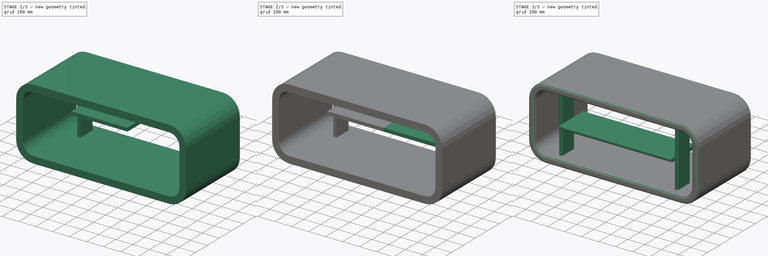
[diagram: build sequence overview — one tinted view per stage of 3, left to right]
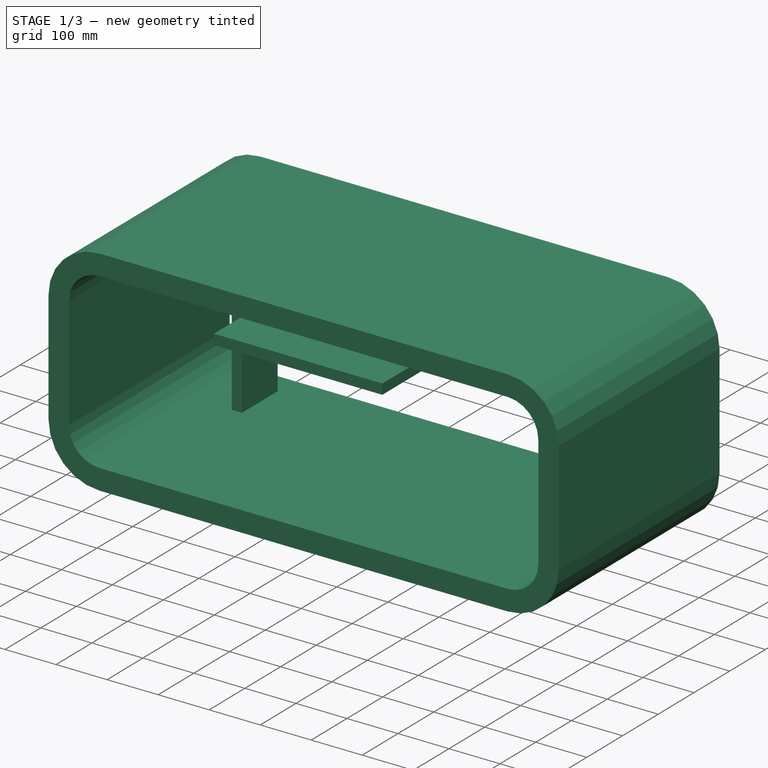
[diagram: stage 1 of 3 — iso view after this stage's code; geometry added in this stage tinted green]
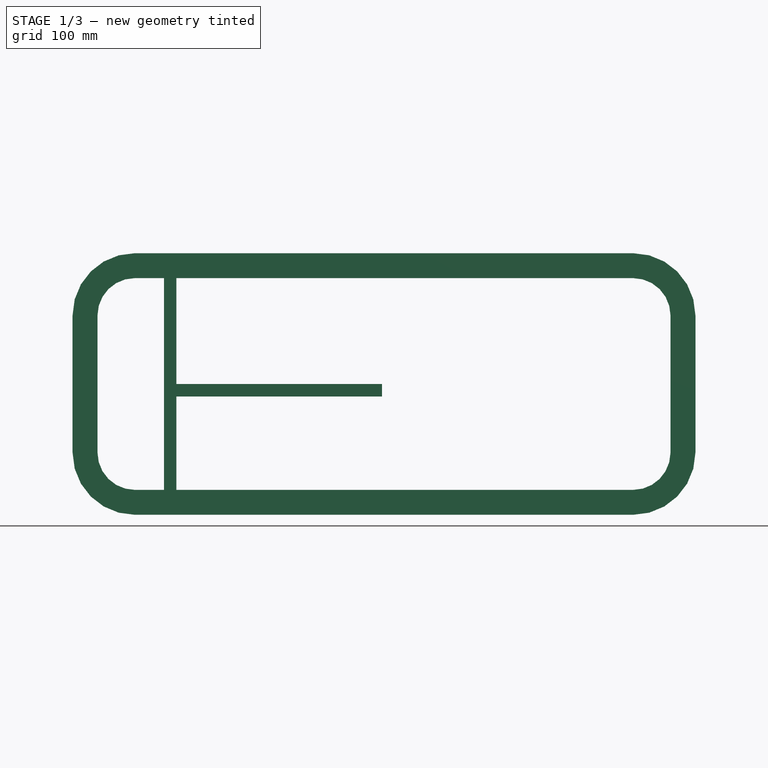
[diagram: stage 1 of 3 — front view after this stage's code; geometry added in this stage tinted green]
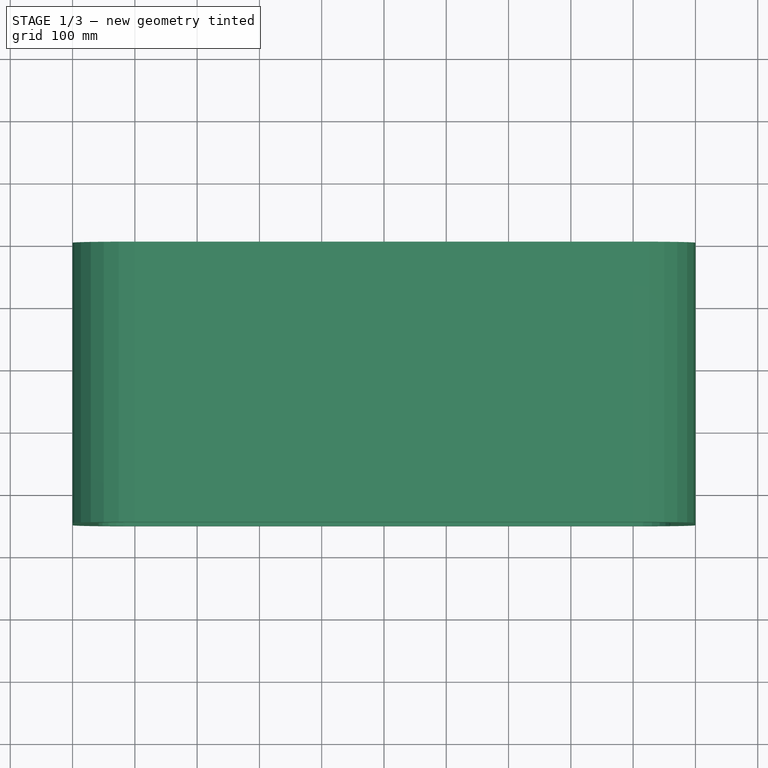
[diagram: stage 1 of 3 — top view after this stage's code; geometry added in this stage tinted green]
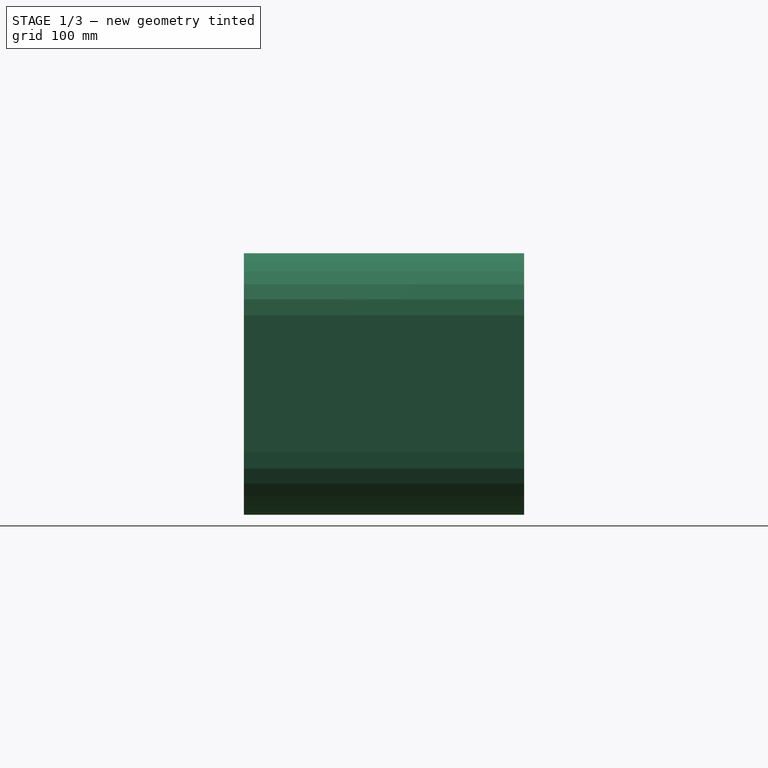
[diagram: stage 1 of 3 — right view after this stage's code; geometry added in this stage tinted green]
FCSTD DOCUMENT  (FreeCAD 0.22R35735 (Git))
Label: bendy-2
License: All rights reserved
LicenseURL: http://en.wikipedia.org/wiki/All_rights_reserved
objects: TechDraw::DrawViewDimension×8, Sketcher::SketchObject×3, PartDesign::Pad×3, PartDesign::Fillet×3, PartDesign::Plane×2, PartDesign::Body×2, TechDraw::DrawProjGroupItem×2, Spreadsheet::Sheet×1, PartDesign::Mirrored×1, Part::Mirroring×1, TechDraw::DrawSVGTemplate×1, TechDraw::DrawProjGroup×1, TechDraw::DrawViewAnnotation×1, TechDraw::DrawPage×1
note: 34 computed .brp shape members not serialized (recipe doc carries the construction recipe); baked Part::Feature solids carry a one-line shape summary decoded from their .brp

FEATURE [Spreadsheet::Sheet] Spreadsheet
  cells = A1='total_height; B1(total_height)=420; A2='total_width; B2(total_width)=1000; A3='total_depth; B3(total_depth)=450; A4='thickness; B4(thickness)=40; A5='corner radius; B5(corner_radius)=100; A6='inner offset; B6(inner_offset)=20; A7='base height; B7(base_height)=30
FEATURE [Sketcher::SketchObject] Sketch  label="MainBody"
  FullyConstrained = true
  MapMode = 5
  Placement = pos=(0,0,0) rot=(1,0,0;1.5708rad)
  Support = -> [XZ_Plane]
  expr: Constraints[12] = Spreadsheet.corner_radius
  expr: Constraints[13] = Spreadsheet.corner_radius
  expr: Constraints[16] = Spreadsheet.corner_radius
  expr: Constraints[17] = Spreadsheet.corner_radius
  expr: Constraints[22] = Spreadsheet.corner_radius
  expr: Constraints[23] = Spreadsheet.corner_radius
  expr: Constraints[24] = Spreadsheet.corner_radius
  expr: Constraints[25] = Spreadsheet.corner_radius
  expr: Constraints[337] = Spreadsheet.thickness
  expr: Constraints[341] = Spreadsheet.thickness
  expr: Constraints[345] = Spreadsheet.thickness
  expr: Constraints[349] = Spreadsheet.thickness
  expr: Constraints[8] = Spreadsheet.total_width
  expr: Constraints[9] = Spreadsheet.total_height
  sketch-geometry (220):
    g0: LineSegment StartX=0 StartY=420 StartZ=0 EndX=0 EndY=0 EndZ=0
    g1: LineSegment StartX=0 StartY=0 StartZ=0 EndX=1000 EndY=0 EndZ=0
    g2: LineSegment StartX=1000 StartY=0 StartZ=0 EndX=1000 EndY=420 EndZ=0
    g3: LineSegment StartX=1000 StartY=420 StartZ=0 EndX=0 EndY=420 EndZ=0
    g4: LineSegment StartX=0 StartY=320 StartZ=0 EndX=0 EndY=100 EndZ=0
    g5: LineSegment StartX=100 StartY=420 StartZ=0 EndX=900 EndY=420 EndZ=0
    g6: LineSegment StartX=100 StartY=0 StartZ=0 EndX=900 EndY=0 EndZ=0
    g7: LineSegment StartX=1000 StartY=320 StartZ=0 EndX=1000 EndY=100 EndZ=0
    g8: LineSegment StartX=100 StartY=420 StartZ=0 EndX=100 EndY=0 EndZ=0
    g9: LineSegment StartX=0 StartY=320 StartZ=0 EndX=1000 EndY=320 EndZ=0
    g10: LineSegment StartX=900 StartY=420 StartZ=0 EndX=900 EndY=0 EndZ=0
    g11: LineSegment StartX=1000 StartY=100 StartZ=0 EndX=0 EndY=100 EndZ=0
    g12: GeomPoint X=100 Y=320 Z=0
    g13: GeomPoint X=100 Y=100 Z=0
    g14: GeomPoint X=900 Y=100 Z=0
    g15: GeomPoint X=900 Y=320 Z=0
    g16: LineSegment StartX=100 StartY=420 StartZ=0 EndX=74.1181 EndY=416.593 EndZ=0
    g17: LineSegment StartX=74.1181 StartY=416.593 StartZ=0 EndX=50 EndY=406.603 EndZ=0
    g18: LineSegment StartX=50 StartY=406.603 StartZ=0 EndX=29.2893 EndY=390.711 EndZ=0
    g19: LineSegment StartX=29.2893 StartY=390.711 StartZ=0 EndX=13.3975 EndY=370 EndZ=0
    g20: LineSegment StartX=13.3975 StartY=370 StartZ=0 EndX=3.40742 EndY=345.882 EndZ=0
    g21: LineSegment StartX=3.40742 StartY=345.882 StartZ=0 EndX=8.9e-15 EndY=320 EndZ=0
    g22: LineSegment StartX=8.9e-15 StartY=320 StartZ=0 EndX=3.40742 EndY=294.118 EndZ=0
    g23: LineSegment StartX=3.40742 StartY=294.118 StartZ=0 EndX=13.3975 EndY=270 EndZ=0
    g24: LineSegment StartX=13.3975 StartY=270 StartZ=0 EndX=29.2893 EndY=249.289 EndZ=0
    g25: LineSegment StartX=29.2893 StartY=249.289 StartZ=0 EndX=50 EndY=233.397 EndZ=0
    g26: LineSegment StartX=50 StartY=233.397 StartZ=0 EndX=74.1181 EndY=223.407 EndZ=0
    g27: LineSegment StartX=74.1181 StartY=223.407 StartZ=0 EndX=100 EndY=220 EndZ=0
    g28: LineSegment StartX=100 StartY=220 StartZ=0 EndX=125.882 EndY=223.407 EndZ=0
    g29: LineSegment StartX=125.882 StartY=223.407 StartZ=0 EndX=150 EndY=233.397 EndZ=0
    g30: LineSegment StartX=150 StartY=233.397 StartZ=0 EndX=170.711 EndY=249.289 EndZ=0
    g31: LineSegment StartX=170.711 StartY=249.289 StartZ=0 EndX=186.603 EndY=270 EndZ=0
    g32: LineSegment StartX=186.603 StartY=270 StartZ=0 EndX=196.593 EndY=294.118 EndZ=0
    g33: LineSegment StartX=196.593 StartY=294.118 StartZ=0 EndX=200 EndY=320 EndZ=0
    g34: LineSegment StartX=200 StartY=320 StartZ=0 EndX=196.593 EndY=345.882 EndZ=0
    g35: LineSegment StartX=196.593 StartY=345.882 StartZ=0 EndX=186.603 EndY=370 EndZ=0
    g36: LineSegment StartX=186.603 StartY=370 StartZ=0 EndX=170.711 EndY=390.711 EndZ=0
    g37: LineSegment StartX=170.711 StartY=390.711 StartZ=0 EndX=150 EndY=406.603 EndZ=0
    g38: LineSegment StartX=150 StartY=406.603 StartZ=0 EndX=125.882 EndY=416.593 EndZ=0
    g39: LineSegment StartX=125.882 StartY=416.593 StartZ=0 EndX=100 EndY=420 EndZ=0
    g40: Circle CenterX=100 CenterY=320 CenterZ=0 NormalX=0 NormalY=0 NormalZ=1 AngleXU=0 Radius=100
    g41: LineSegment StartX=0 StartY=100 StartZ=0 EndX=3.40742 EndY=74.1181 EndZ=0
    g42: LineSegment StartX=3.40742 StartY=74.1181 StartZ=0 EndX=13.3975 EndY=50 EndZ=0
    g43: LineSegment StartX=13.3975 StartY=50 StartZ=0 EndX=29.2893 EndY=29.2893 EndZ=0
    g44: LineSegment StartX=29.2893 StartY=29.2893 StartZ=0 EndX=50 EndY=13.3975 EndZ=0
    g45: LineSegment StartX=50 StartY=13.3975 StartZ=0 EndX=74.1181 EndY=3.40742 EndZ=0
    g46: LineSegment StartX=74.1181 StartY=3.40742 StartZ=0 EndX=100 EndY=-9e-16 EndZ=0
    g47: LineSegment StartX=100 StartY=-9e-16 StartZ=0 EndX=125.882 EndY=3.40742 EndZ=0
    g48: LineSegment StartX=125.882 StartY=3.40742 StartZ=0 EndX=150 EndY=13.3975 EndZ=0
    g49: LineSegment StartX=150 StartY=13.3975 StartZ=0 EndX=170.711 EndY=29.2893 EndZ=0
    g50: LineSegment StartX=170.711 StartY=29.2893 StartZ=0 EndX=186.603 EndY=50 EndZ=0
    g51: LineSegment StartX=186.603 StartY=50 StartZ=0 EndX=196.593 EndY=74.1181 EndZ=0
    g52: LineSegment StartX=196.593 StartY=74.1181 StartZ=0 EndX=200 EndY=100 EndZ=0
    g53: LineSegment StartX=200 StartY=100 StartZ=0 EndX=196.593 EndY=125.882 EndZ=0
    g54: LineSegment StartX=196.593 StartY=125.882 StartZ=0 EndX=186.603 EndY=150 EndZ=0
    g55: LineSegment StartX=186.603 StartY=150 StartZ=0 EndX=170.711 EndY=170.711 EndZ=0
    g56: LineSegment StartX=170.711 StartY=170.711 StartZ=0 EndX=150 EndY=186.603 EndZ=0
    g57: LineSegment StartX=150 StartY=186.603 StartZ=0 EndX=125.882 EndY=196.593 EndZ=0
    g58: LineSegment StartX=125.882 StartY=196.593 StartZ=0 EndX=100 EndY=200 EndZ=0
    g59: LineSegment StartX=100 StartY=200 StartZ=0 EndX=74.1181 EndY=196.593 EndZ=0
    g60: LineSegment StartX=74.1181 StartY=196.593 StartZ=0 EndX=50 EndY=186.603 EndZ=0
    g61: LineSegment StartX=50 StartY=186.603 StartZ=0 EndX=29.2893 EndY=170.711 EndZ=0
    g62: LineSegment StartX=29.2893 StartY=170.711 StartZ=0 EndX=13.3975 EndY=150 EndZ=0
    g63: LineSegment StartX=13.3975 StartY=150 StartZ=0 EndX=3.40742 EndY=125.882 EndZ=0
    g64: LineSegment StartX=3.40742 StartY=125.882 StartZ=0 EndX=4e-16 EndY=100 EndZ=0
    g65: Circle CenterX=100 CenterY=100 CenterZ=0 NormalX=0 NormalY=0 NormalZ=1 AngleXU=0 Radius=100
    g66: LineSegment StartX=1000 StartY=100 StartZ=0 EndX=996.593 EndY=125.882 EndZ=0
    g67: LineSegment StartX=996.593 StartY=125.882 StartZ=0 EndX=986.603 EndY=150 EndZ=0
    g68: LineSegment StartX=986.603 StartY=150 StartZ=0 EndX=970.711 EndY=170.711 EndZ=0
    g69: LineSegment StartX=970.711 StartY=170.711 StartZ=0 EndX=950 EndY=186.603 EndZ=0
    g70: LineSegment StartX=950 StartY=186.603 StartZ=0 EndX=925.882 EndY=196.593 EndZ=0
    g71: LineSegment StartX=925.882 StartY=196.593 StartZ=0 EndX=900 EndY=200 EndZ=0
    g72: LineSegment StartX=900 StartY=200 StartZ=0 EndX=874.118 EndY=196.593 EndZ=0
    g73: LineSegment StartX=874.118 StartY=196.593 StartZ=0 EndX=850 EndY=186.603 EndZ=0
    g74: LineSegment StartX=850 StartY=186.603 StartZ=0 EndX=829.289 EndY=170.711 EndZ=0
    g75: LineSegment StartX=829.289 StartY=170.711 StartZ=0 EndX=813.397 EndY=150 EndZ=0
    g76: LineSegment StartX=813.397 StartY=150 StartZ=0 EndX=803.407 EndY=125.882 EndZ=0
    g77: LineSegment StartX=803.407 StartY=125.882 StartZ=0 EndX=800 EndY=100 EndZ=0
    g78: LineSegment StartX=800 StartY=100 StartZ=0 EndX=803.407 EndY=74.1181 EndZ=0
    g79: LineSegment StartX=803.407 StartY=74.1181 StartZ=0 EndX=813.397 EndY=50 EndZ=0
    g80: LineSegment StartX=813.397 StartY=50 StartZ=0 EndX=829.289 EndY=29.2893 EndZ=0
    g81: LineSegment StartX=829.289 StartY=29.2893 StartZ=0 EndX=850 EndY=13.3975 EndZ=0
    g82: LineSegment StartX=850 StartY=13.3975 StartZ=0 EndX=874.118 EndY=3.40742 EndZ=0
    g83: LineSegment StartX=874.118 StartY=3.40742 StartZ=0 EndX=900 EndY=-4e-15 EndZ=0
    g84: LineSegment StartX=900 StartY=-4e-15 StartZ=0 EndX=925.882 EndY=3.40742 EndZ=0
    g85: LineSegment StartX=925.882 StartY=3.40742 StartZ=0 EndX=950 EndY=13.3975 EndZ=0
    g86: LineSegment StartX=950 StartY=13.3975 StartZ=0 EndX=970.711 EndY=29.2893 EndZ=0
    g87: LineSegment StartX=970.711 StartY=29.2893 StartZ=0 EndX=986.603 EndY=50 EndZ=0
    g88: LineSegment StartX=986.603 StartY=50 StartZ=0 EndX=996.593 EndY=74.1181 EndZ=0
    g89: LineSegment StartX=996.593 StartY=74.1181 StartZ=0 EndX=1000 EndY=100 EndZ=0
    g90: Circle CenterX=900 CenterY=100 CenterZ=0 NormalX=0 NormalY=0 NormalZ=1 AngleXU=0 Radius=100
    g91: LineSegment StartX=1000 StartY=320 StartZ=0 EndX=996.593 EndY=345.882 EndZ=0
    g92: LineSegment StartX=996.593 StartY=345.882 StartZ=0 EndX=986.603 EndY=370 EndZ=0
    g93: LineSegment StartX=986.603 StartY=370 StartZ=0 EndX=970.711 EndY=390.711 EndZ=0
    g94: LineSegment StartX=970.711 StartY=390.711 StartZ=0 EndX=950 EndY=406.603 EndZ=0
    g95: LineSegment StartX=950 StartY=406.603 StartZ=0 EndX=925.882 EndY=416.593 EndZ=0
    g96: LineSegment StartX=925.882 StartY=416.593 StartZ=0 EndX=900 EndY=420 EndZ=0
    g97: LineSegment StartX=900 StartY=420 StartZ=0 EndX=874.118 EndY=416.593 EndZ=0
    g98: LineSegment StartX=874.118 StartY=416.593 StartZ=0 EndX=850 EndY=406.603 EndZ=0
    g99: LineSegment StartX=850 StartY=406.603 StartZ=0 EndX=829.289 EndY=390.711 EndZ=0
    g100: LineSegment StartX=829.289 StartY=390.711 StartZ=0 EndX=813.397 EndY=370 EndZ=0
    g101: LineSegment StartX=813.397 StartY=370 StartZ=0 EndX=803.407 EndY=345.882 EndZ=0
    g102: LineSegment StartX=803.407 StartY=345.882 StartZ=0 EndX=800 EndY=320 EndZ=0
    g103: LineSegment StartX=800 StartY=320 StartZ=0 EndX=803.407 EndY=294.118 EndZ=0
    g104: LineSegment StartX=803.407 StartY=294.118 StartZ=0 EndX=813.397 EndY=270 EndZ=0
    g105: LineSegment StartX=813.397 StartY=270 StartZ=0 EndX=829.289 EndY=249.289 EndZ=0
    g106: LineSegment StartX=829.289 StartY=249.289 StartZ=0 EndX=850 EndY=233.397 EndZ=0
    g107: LineSegment StartX=850 StartY=233.397 StartZ=0 EndX=874.118 EndY=223.407 EndZ=0
    g108: LineSegment StartX=874.118 StartY=223.407 StartZ=0 EndX=900 EndY=220 EndZ=0
    g109: LineSegment StartX=900 StartY=220 StartZ=0 EndX=925.882 EndY=223.407 EndZ=0
    g110: LineSegment StartX=925.882 StartY=223.407 StartZ=0 EndX=950 EndY=233.397 EndZ=0
    g111: LineSegment StartX=950 StartY=233.397 StartZ=0 EndX=970.711 EndY=249.289 EndZ=0
    g112: LineSegment StartX=970.711 StartY=249.289 StartZ=0 EndX=986.603 EndY=270 EndZ=0
    g113: LineSegment StartX=986.603 StartY=270 StartZ=0 EndX=996.593 EndY=294.118 EndZ=0
    g114: LineSegment StartX=996.593 StartY=294.118 StartZ=0 EndX=1000 EndY=320 EndZ=0
    g115: Circle CenterX=900 CenterY=320 CenterZ=0 NormalX=0 NormalY=0 NormalZ=1 AngleXU=0 Radius=100
    g116: LineSegment StartX=100 StartY=380 StartZ=0 EndX=900 EndY=380 EndZ=0
    g117: LineSegment StartX=40 StartY=320 StartZ=0 EndX=40 EndY=100 EndZ=0
    g118: LineSegment StartX=100 StartY=40 StartZ=0 EndX=900 EndY=40 EndZ=0
    g119: LineSegment StartX=960 StartY=320 StartZ=0 EndX=960 EndY=100 EndZ=0
    g120: LineSegment StartX=900 StartY=380 StartZ=0 EndX=884.471 EndY=377.956 EndZ=0
    g121: LineSegment StartX=884.471 StartY=377.956 StartZ=0 EndX=870 EndY=371.962 EndZ=0
    g122: LineSegment StartX=870 StartY=371.962 StartZ=0 EndX=857.574 EndY=362.426 EndZ=0
    g123: LineSegment StartX=857.574 StartY=362.426 StartZ=0 EndX=848.038 EndY=350 EndZ=0
    g124: LineSegment StartX=848.038 StartY=350 StartZ=0 EndX=842.044 EndY=335.529 EndZ=0
    g125: LineSegment StartX=842.044 StartY=335.529 StartZ=0 EndX=840 EndY=320 EndZ=0
    g126: LineSegment StartX=840 StartY=320 StartZ=0 EndX=842.044 EndY=304.471 EndZ=0
    g127: LineSegment StartX=842.044 StartY=304.471 StartZ=0 EndX=848.038 EndY=290 EndZ=0
    g128: LineSegment StartX=848.038 StartY=290 StartZ=0 EndX=857.574 EndY=277.574 EndZ=0
    g129: LineSegment StartX=857.574 StartY=277.574 StartZ=0 EndX=870 EndY=268.038 EndZ=0
    g130: LineSegment StartX=870 StartY=268.038 StartZ=0 EndX=884.471 EndY=262.044 EndZ=0
    g131: LineSegment StartX=884.471 StartY=262.044 StartZ=0 EndX=900 EndY=260 EndZ=0
    g132: LineSegment StartX=900 StartY=260 StartZ=0 EndX=915.529 EndY=262.044 EndZ=0
    g133: LineSegment StartX=915.529 StartY=262.044 StartZ=0 EndX=930 EndY=268.038 EndZ=0
    g134: LineSegment StartX=930 StartY=268.038 StartZ=0 EndX=942.426 EndY=277.574 EndZ=0
    g135: LineSegment StartX=942.426 StartY=277.574 StartZ=0 EndX=951.962 EndY=290 EndZ=0
    g136: LineSegment StartX=951.962 StartY=290 StartZ=0 EndX=957.956 EndY=304.471 EndZ=0
    g137: LineSegment StartX=957.956 StartY=304.471 StartZ=0 EndX=960 EndY=320 EndZ=0
    g138: LineSegment StartX=960 StartY=320 StartZ=0 EndX=957.956 EndY=335.529 EndZ=0
    g139: LineSegment StartX=957.956 StartY=335.529 StartZ=0 EndX=951.962 EndY=350 EndZ=0
    g140: LineSegment StartX=951.962 StartY=350 StartZ=0 EndX=942.426 EndY=362.426 EndZ=0
    g141: LineSegment StartX=942.426 StartY=362.426 StartZ=0 EndX=930 EndY=371.962 EndZ=0
    g142: LineSegment StartX=930 StartY=371.962 StartZ=0 EndX=915.529 EndY=377.956 EndZ=0
    g143: LineSegment StartX=915.529 StartY=377.956 StartZ=0 EndX=900 EndY=380 EndZ=0
    g144: Circle CenterX=900 CenterY=320 CenterZ=0 NormalX=0 NormalY=0 NormalZ=1 AngleXU=0 Radius=60
    g145: LineSegment StartX=900 StartY=40 StartZ=0 EndX=915.529 EndY=42.0445 EndZ=0
    g146: LineSegment StartX=915.529 StartY=42.0445 StartZ=0 EndX=930 EndY=48.0385 EndZ=0
    g147: LineSegment StartX=930 StartY=48.0385 StartZ=0 EndX=942.426 EndY=57.5736 EndZ=0
    g148: LineSegment StartX=942.426 StartY=57.5736 StartZ=0 EndX=951.962 EndY=70 EndZ=0
    g149: LineSegment StartX=951.962 StartY=70 StartZ=0 EndX=957.956 EndY=84.4709 EndZ=0
    g150: LineSegment StartX=957.956 StartY=84.4709 StartZ=0 EndX=960 EndY=100 EndZ=0
    g151: LineSegment StartX=960 StartY=100 StartZ=0 EndX=957.956 EndY=115.529 EndZ=0
    g152: LineSegment StartX=957.956 StartY=115.529 StartZ=0 EndX=951.962 EndY=130 EndZ=0
    g153: LineSegment StartX=951.962 StartY=130 StartZ=0 EndX=942.426 EndY=142.426 EndZ=0
    g154: LineSegment StartX=942.426 StartY=142.426 StartZ=0 EndX=930 EndY=151.962 EndZ=0
    g155: LineSegment StartX=930 StartY=151.962 StartZ=0 EndX=915.529 EndY=157.956 EndZ=0
    g156: LineSegment StartX=915.529 StartY=157.956 StartZ=0 EndX=900 EndY=160 EndZ=0
    g157: LineSegment StartX=900 StartY=160 StartZ=0 EndX=884.471 EndY=157.956 EndZ=0
    g158: LineSegment StartX=884.471 StartY=157.956 StartZ=0 EndX=870 EndY=151.962 EndZ=0
    g159: LineSegment StartX=870 StartY=151.962 StartZ=0 EndX=857.574 EndY=142.426 EndZ=0
    g160: LineSegment StartX=857.574 StartY=142.426 StartZ=0 EndX=848.038 EndY=130 EndZ=0
    g161: LineSegment StartX=848.038 StartY=130 StartZ=0 EndX=842.044 EndY=115.529 EndZ=0
    g162: LineSegment StartX=842.044 StartY=115.529 StartZ=0 EndX=840 EndY=100 EndZ=0
    g163: LineSegment StartX=840 StartY=100 StartZ=0 EndX=842.044 EndY=84.4709 EndZ=0
    g164: LineSegment StartX=842.044 StartY=84.4709 StartZ=0 EndX=848.038 EndY=70 EndZ=0
    g165: LineSegment StartX=848.038 StartY=70 StartZ=0 EndX=857.574 EndY=57.5736 EndZ=0
    g166: LineSegment StartX=857.574 StartY=57.5736 StartZ=0 EndX=870 EndY=48.0385 EndZ=0
    g167: LineSegment StartX=870 StartY=48.0385 StartZ=0 EndX=884.471 EndY=42.0445 EndZ=0
    g168: LineSegment StartX=884.471 StartY=42.0445 StartZ=0 EndX=900 EndY=40 EndZ=0
    g169: Circle CenterX=900 CenterY=100 CenterZ=0 NormalX=0 NormalY=0 NormalZ=1 AngleXU=0 Radius=60
    g170: LineSegment StartX=100 StartY=40 StartZ=0 EndX=115.529 EndY=42.0445 EndZ=0
    g171: LineSegment StartX=115.529 StartY=42.0445 StartZ=0 EndX=130 EndY=48.0385 EndZ=0
    g172: LineSegment StartX=130 StartY=48.0385 StartZ=0 EndX=142.426 EndY=57.5736 EndZ=0
    g173: LineSegment StartX=142.426 StartY=57.5736 StartZ=0 EndX=151.962 EndY=70 EndZ=0
    g174: LineSegment StartX=151.962 StartY=70 StartZ=0 EndX=157.956 EndY=84.4709 EndZ=0
    g175: LineSegment StartX=157.956 StartY=84.4709 StartZ=0 EndX=160 EndY=100 EndZ=0
    g176: LineSegment StartX=160 StartY=100 StartZ=0 EndX=157.956 EndY=115.529 EndZ=0
    g177: LineSegment StartX=157.956 StartY=115.529 StartZ=0 EndX=151.962 EndY=130 EndZ=0
    g178: LineSegment StartX=151.962 StartY=130 StartZ=0 EndX=142.426 EndY=142.426 EndZ=0
    g179: LineSegment StartX=142.426 StartY=142.426 StartZ=0 EndX=130 EndY=151.962 EndZ=0
    g180: LineSegment StartX=130 StartY=151.962 StartZ=0 EndX=115.529 EndY=157.956 EndZ=0
    g181: LineSegment StartX=115.529 StartY=157.956 StartZ=0 EndX=100 EndY=160 EndZ=0
    g182: LineSegment StartX=100 StartY=160 StartZ=0 EndX=84.4709 EndY=157.956 EndZ=0
    g183: LineSegment StartX=84.4709 StartY=157.956 StartZ=0 EndX=70 EndY=151.962 EndZ=0
    g184: LineSegment StartX=70 StartY=151.962 StartZ=0 EndX=57.5736 EndY=142.426 EndZ=0
    g185: LineSegment StartX=57.5736 StartY=142.426 StartZ=0 EndX=48.0385 EndY=130 EndZ=0
    g186: LineSegment StartX=48.0385 StartY=130 StartZ=0 EndX=42.0445 EndY=115.529 EndZ=0
    g187: LineSegment StartX=42.0445 StartY=115.529 StartZ=0 EndX=40 EndY=100 EndZ=0
    g188: LineSegment StartX=40 StartY=100 StartZ=0 EndX=42.0445 EndY=84.4709 EndZ=0
    g189: LineSegment StartX=42.0445 StartY=84.4709 StartZ=0 EndX=48.0385 EndY=70 EndZ=0
    g190: LineSegment StartX=48.0385 StartY=70 StartZ=0 EndX=57.5736 EndY=57.5736 EndZ=0
    g191: LineSegment StartX=57.5736 StartY=57.5736 StartZ=0 EndX=70 EndY=48.0385 EndZ=0
    g192: LineSegment StartX=70 StartY=48.0385 StartZ=0 EndX=84.4709 EndY=42.0445 EndZ=0
    g193: LineSegment StartX=84.4709 StartY=42.0445 StartZ=0 EndX=100 EndY=40 EndZ=0
    g194: Circle CenterX=100 CenterY=100 CenterZ=0 NormalX=0 NormalY=0 NormalZ=1 AngleXU=0 Radius=60
    g195: LineSegment StartX=100 StartY=380 StartZ=0 EndX=84.4709 EndY=377.956 EndZ=0
    g196: LineSegment StartX=84.4709 StartY=377.956 StartZ=0 EndX=70 EndY=371.962 EndZ=0
    g197: LineSegment StartX=70 StartY=371.962 StartZ=0 EndX=57.5736 EndY=362.426 EndZ=0
    g198: LineSegment StartX=57.5736 StartY=362.426 StartZ=0 EndX=48.0385 EndY=350 EndZ=0
    g199: LineSegment StartX=48.0385 StartY=350 StartZ=0 EndX=42.0445 EndY=335.529 EndZ=0
    g200: LineSegment StartX=42.0445 StartY=335.529 StartZ=0 EndX=40 EndY=320 EndZ=0
    g201: LineSegment StartX=40 StartY=320 StartZ=0 EndX=42.0445 EndY=304.471 EndZ=0
    g202: LineSegment StartX=42.0445 StartY=304.471 StartZ=0 EndX=48.0385 EndY=290 EndZ=0
    g203: LineSegment StartX=48.0385 StartY=290 StartZ=0 EndX=57.5736 EndY=277.574 EndZ=0
    g204: LineSegment StartX=57.5736 StartY=277.574 StartZ=0 EndX=70 EndY=268.038 EndZ=0
    g205: LineSegment StartX=70 StartY=268.038 StartZ=0 EndX=84.4709 EndY=262.044 EndZ=0
    g206: LineSegment StartX=84.4709 StartY=262.044 StartZ=0 EndX=100 EndY=260 EndZ=0
    g207: LineSegment StartX=100 StartY=260 StartZ=0 EndX=115.529 EndY=262.044 EndZ=0
    g208: LineSegment StartX=115.529 StartY=262.044 StartZ=0 EndX=130 EndY=268.038 EndZ=0
    g209: LineSegment StartX=130 StartY=268.038 StartZ=0 EndX=142.426 EndY=277.574 EndZ=0
    g210: LineSegment StartX=142.426 StartY=277.574 StartZ=0 EndX=151.962 EndY=290 EndZ=0
    g211: LineSegment StartX=151.962 StartY=290 StartZ=0 EndX=157.956 EndY=304.471 EndZ=0
    g212: LineSegment StartX=157.956 StartY=304.471 StartZ=0 EndX=160 EndY=320 EndZ=0
    g213: LineSegment StartX=160 StartY=320 StartZ=0 EndX=157.956 EndY=335.529 EndZ=0
    g214: LineSegment StartX=157.956 StartY=335.529 StartZ=0 EndX=151.962 EndY=350 EndZ=0
    g215: LineSegment StartX=151.962 StartY=350 StartZ=0 EndX=142.426 EndY=362.426 EndZ=0
    g216: LineSegment StartX=142.426 StartY=362.426 StartZ=0 EndX=130 EndY=371.962 EndZ=0
    g217: LineSegment StartX=130 StartY=371.962 StartZ=0 EndX=115.529 EndY=377.956 EndZ=0
    g218: LineSegment StartX=115.529 StartY=377.956 StartZ=0 EndX=100 EndY=380 EndZ=0
    g219: Circle CenterX=100 CenterY=320 CenterZ=0 NormalX=0 NormalY=0 NormalZ=1 AngleXU=0 Radius=60
  constraints (467):
    c: Coincident(g0,g1)
    c: Coincident(g1,g2)
    c: Coincident(g2,g3)
    c: Coincident(g3,g0)
    c: Vertical(g0)
    c: Vertical(g2)
    c: Horizontal(g1)
    c: Horizontal(g3)
    c: DistanceX(g3,g3) = 1000
    c: DistanceY(g-1,g0) = 420
    c: PointOnObject(g4,g0)
    c: PointOnObject(g4,g0)
    c: DistanceY(g4,g0) = 100
    c: DistanceY(g0,g4) = 100
    c: PointOnObject(g5,g3)
    c: PointOnObject(g5,g3)
    c: DistanceX(g0,g5) = 100
    c: DistanceX(g5,g2) = 100
    c: PointOnObject(g6,g1)
    c: PointOnObject(g6,g1)
    c: PointOnObject(g7,g2)
    c: PointOnObject(g7,g2)
    c: DistanceY(g7,g2) = 100
    c: DistanceY(g1,g7) = 100
    c: DistanceX(g6,g1) = 100
    c: DistanceX(g0,g6) = 100
    c: Coincident(g8,g5)
    c: Coincident(g8,g6)
    c: Coincident(g9,g4)
    c: Coincident(g9,g7)
    c: Coincident(g10,g5)
    c: Coincident(g10,g6)
    c: Coincident(g11,g7)
    c: Coincident(g11,g4)
    c: PointOnObject(g12,g8)
    c: PointOnObject(g12,g9)
    c: PointOnObject(g13,g11)
    c: PointOnObject(g14,g11)
    c: PointOnObject(g15,g10)
    c: PointOnObject(g15,g9)
    c: PointOnObject(g13,g8)
    c: PointOnObject(g14,g10)
    c: Coincident(g16,g17)
    c: Coincident(g17,g18)
    c: Coincident(g18,g19)
    c: Coincident(g19,g20)
    c: Coincident(g20,g21)
    c: Coincident(g21,g22)
    c: Coincident(g22,g23)
    c: Coincident(g23,g24)
    c: Coincident(g24,g25)
    c: Coincident(g25,g26)
    c: Coincident(g26,g27)
    c: Coincident(g27,g28)
    c: Coincident(g28,g29)
    c: Coincident(g29,g30)
    c: Coincident(g30,g31)
    c: Coincident(g31,g32)
    c: Coincident(g32,g33)
    c: Coincident(g33,g34)
    c: Coincident(g34,g35)
    c: Coincident(g35,g36)
    c: Coincident(g36,g37)
    c: Coincident(g37,g38)
    c: Coincident(g38,g39)
    c: Coincident(g39,g16)
    c: Equal(g16, g17-g39) x23
    c: PointOnObject(g16,g40)
    c: PointOnObject(g17,g40)
    c: PointOnObject(g18,g40)
    c: PointOnObject(g19,g40)
    c: PointOnObject(g20,g40)
    c: PointOnObject(g21,g40)
    c: PointOnObject(g22,g40)
    c: PointOnObject(g23,g40)
    c: PointOnObject(g24,g40)
    c: PointOnObject(g25,g40)
    c: PointOnObject(g26,g40)
    c: PointOnObject(g27,g40)
    c: PointOnObject(g28,g40)
    c: PointOnObject(g29,g40)
    c: PointOnObject(g30,g40)
    c: PointOnObject(g31,g40)
    c: PointOnObject(g32,g40)
    c: PointOnObject(g33,g40)
    c: PointOnObject(g34,g40)
    c: PointOnObject(g35,g40)
    c: PointOnObject(g36,g40)
    c: PointOnObject(g37,g40)
    c: PointOnObject(g38,g40)
    c: PointOnObject(g39,g40)
    c: Coincident(g40,g12)
    c: Coincident(g39,g5)
    c: Coincident(g41,g42)
    c: Coincident(g42,g43)
    c: Coincident(g43,g44)
    c: Coincident(g44,g45)
    c: Coincident(g45,g46)
    c: Coincident(g46,g47)
    c: Coincident(g47,g48)
    c: Coincident(g48,g49)
    c: Coincident(g49,g50)
    c: Coincident(g50,g51)
    c: Coincident(g51,g52)
    c: Coincident(g52,g53)
    c: Coincident(g53,g54)
    c: Coincident(g54,g55)
    c: Coincident(g55,g56)
    c: Coincident(g56,g57)
    c: Coincident(g57,g58)
    c: Coincident(g58,g59)
    c: Coincident(g59,g60)
    c: Coincident(g60,g61)
    c: Coincident(g61,g62)
    c: Coincident(g62,g63)
    c: Coincident(g63,g64)
    c: Coincident(g64,g41)
    c: Equal(g41, g42-g64) x23
    c: PointOnObject(g41,g65)
    c: PointOnObject(g42,g65)
    c: PointOnObject(g43,g65)
    c: PointOnObject(g44,g65)
    c: PointOnObject(g45,g65)
    c: PointOnObject(g46,g65)
    c: PointOnObject(g47,g65)
    c: PointOnObject(g48,g65)
    c: PointOnObject(g49,g65)
    c: PointOnObject(g50,g65)
    c: PointOnObject(g51,g65)
    c: PointOnObject(g52,g65)
    c: PointOnObject(g53,g65)
    c: PointOnObject(g54,g65)
    c: PointOnObject(g55,g65)
    c: PointOnObject(g56,g65)
    c: PointOnObject(g57,g65)
    c: PointOnObject(g58,g65)
    c: PointOnObject(g59,g65)
    c: PointOnObject(g60,g65)
    c: PointOnObject(g61,g65)
    c: PointOnObject(g62,g65)
    c: PointOnObject(g63,g65)
    c: PointOnObject(g64,g65)
    c: Coincident(g65,g13)
    c: Coincident(g64,g4)
    c: Coincident(g66,g67)
    c: Coincident(g67,g68)
    c: Coincident(g68,g69)
    c: Coincident(g69,g70)
    c: Coincident(g70,g71)
    c: Coincident(g71,g72)
    c: Coincident(g72,g73)
    c: Coincident(g73,g74)
    c: Coincident(g74,g75)
    c: Coincident(g75,g76)
    c: Coincident(g76,g77)
    c: Coincident(g77,g78)
    c: Coincident(g78,g79)
    c: Coincident(g79,g80)
    c: Coincident(g80,g81)
    c: Coincident(g81,g82)
    c: Coincident(g82,g83)
    c: Coincident(g83,g84)
    c: Coincident(g84,g85)
    c: Coincident(g85,g86)
    c: Coincident(g86,g87)
    c: Coincident(g87,g88)
    c: Coincident(g88,g89)
    c: Coincident(g89,g66)
    c: Equal(g66, g67-g89) x23
    c: PointOnObject(g66,g90)
    c: PointOnObject(g67,g90)
    c: PointOnObject(g68,g90)
    c: PointOnObject(g69,g90)
    c: PointOnObject(g70,g90)
    c: PointOnObject(g71,g90)
    c: PointOnObject(g72,g90)
    c: PointOnObject(g73,g90)
    c: PointOnObject(g74,g90)
    c: PointOnObject(g75,g90)
    c: PointOnObject(g76,g90)
    c: PointOnObject(g77,g90)
    c: PointOnObject(g78,g90)
    c: PointOnObject(g79,g90)
    c: PointOnObject(g80,g90)
    c: PointOnObject(g81,g90)
    c: PointOnObject(g82,g90)
    c: PointOnObject(g83,g90)
    c: PointOnObject(g84,g90)
    c: PointOnObject(g85,g90)
    c: PointOnObject(g86,g90)
    c: PointOnObject(g87,g90)
    c: PointOnObject(g88,g90)
    c: PointOnObject(g89,g90)
    c: Coincident(g90,g14)
    c: Coincident(g89,g7)
    c: Coincident(g91,g92)
    c: Coincident(g92,g93)
    c: Coincident(g93,g94)
    c: Coincident(g94,g95)
    c: Coincident(g95,g96)
    c: Coincident(g96,g97)
    c: Coincident(g97,g98)
    c: Coincident(g98,g99)
    c: Coincident(g99,g100)
    c: Coincident(g100,g101)
    c: Coincident(g101,g102)
    c: Coincident(g102,g103)
    c: Coincident(g103,g104)
    c: Coincident(g104,g105)
    c: Coincident(g105,g106)
    c: Coincident(g106,g107)
    c: Coincident(g107,g108)
    c: Coincident(g108,g109)
    c: Coincident(g109,g110)
    c: Coincident(g110,g111)
    c: Coincident(g111,g112)
    c: Coincident(g112,g113)
    c: Coincident(g113,g114)
    c: Coincident(g114,g91)
    c: Equal(g91, g92-g114) x23
    c: PointOnObject(g91,g115)
    c: PointOnObject(g92,g115)
    c: PointOnObject(g93,g115)
    c: PointOnObject(g94,g115)
    c: PointOnObject(g95,g115)
    c: PointOnObject(g96,g115)
    c: PointOnObject(g97,g115)
    c: PointOnObject(g98,g115)
    c: PointOnObject(g99,g115)
    c: PointOnObject(g100,g115)
    c: PointOnObject(g101,g115)
    c: PointOnObject(g102,g115)
    c: PointOnObject(g103,g115)
    c: PointOnObject(g104,g115)
    c: PointOnObject(g105,g115)
    c: PointOnObject(g106,g115)
    c: PointOnObject(g107,g115)
    c: PointOnObject(g108,g115)
    c: PointOnObject(g109,g115)
    c: PointOnObject(g110,g115)
    c: PointOnObject(g111,g115)
    c: PointOnObject(g112,g115)
    c: PointOnObject(g113,g115)
    c: PointOnObject(g114,g115)
    c: Coincident(g115,g15)
    c: Coincident(g114,g7)
    c: PointOnObject(g116,g8)
    c: PointOnObject(g116,g10)
    c: Horizontal(g116)
    c: DistanceY(g116,g5) = 40
    c: PointOnObject(g117,g9)
    c: PointOnObject(g117,g11)
    c: Vertical(g117)
    c: DistanceX(g4,g117) = 40
    c: PointOnObject(g118,g8)
    c: PointOnObject(g118,g10)
    c: Horizontal(g118)
    c: DistanceY(g6,g118) = 40
    c: PointOnObject(g119,g9)
    c: PointOnObject(g119,g11)
    c: Vertical(g119)
    c: DistanceX(g119,g7) = 40
    c: Coincident(g120,g121)
    c: Coincident(g121,g122)
    c: Coincident(g122,g123)
    c: Coincident(g123,g124)
    c: Coincident(g124,g125)
    c: Coincident(g125,g126)
    c: Coincident(g126,g127)
    c: Coincident(g127,g128)
    c: Coincident(g128,g129)
    c: Coincident(g129,g130)
    c: Coincident(g130,g131)
    c: Coincident(g131,g132)
    c: Coincident(g132,g133)
    c: Coincident(g133,g134)
    c: Coincident(g134,g135)
    c: Coincident(g135,g136)
    c: Coincident(g136,g137)
    c: Coincident(g137,g138)
    c: Coincident(g138,g139)
    c: Coincident(g139,g140)
    c: Coincident(g140,g141)
    c: Coincident(g141,g142)
    c: Coincident(g142,g143)
    c: Coincident(g143,g120)
    c: Equal(g120, g121-g143) x23
    c: PointOnObject(g120,g144)
    c: PointOnObject(g121,g144)
    c: PointOnObject(g122,g144)
    c: PointOnObject(g123,g144)
    c: PointOnObject(g124,g144)
    c: PointOnObject(g125,g144)
    c: PointOnObject(g126,g144)
    c: PointOnObject(g127,g144)
    c: PointOnObject(g128,g144)
    c: PointOnObject(g129,g144)
    c: PointOnObject(g130,g144)
    c: PointOnObject(g131,g144)
    c: PointOnObject(g132,g144)
    c: PointOnObject(g133,g144)
    c: PointOnObject(g134,g144)
    c: PointOnObject(g135,g144)
    c: PointOnObject(g136,g144)
    c: PointOnObject(g137,g144)
    c: PointOnObject(g138,g144)
    c: PointOnObject(g139,g144)
    c: PointOnObject(g140,g144)
    c: PointOnObject(g141,g144)
    c: PointOnObject(g142,g144)
    c: PointOnObject(g143,g144)
    c: Coincident(g144,g15)
    c: Coincident(g143,g116)
    c: Coincident(g145,g146)
    c: Coincident(g146,g147)
    c: Coincident(g147,g148)
    c: Coincident(g148,g149)
    c: Coincident(g149,g150)
    c: Coincident(g150,g151)
    c: Coincident(g151,g152)
    c: Coincident(g152,g153)
    c: Coincident(g153,g154)
    c: Coincident(g154,g155)
    c: Coincident(g155,g156)
    c: Coincident(g156,g157)
    c: Coincident(g157,g158)
    c: Coincident(g158,g159)
    c: Coincident(g159,g160)
    c: Coincident(g160,g161)
    c: Coincident(g161,g162)
    c: Coincident(g162,g163)
    c: Coincident(g163,g164)
    c: Coincident(g164,g165)
    c: Coincident(g165,g166)
    c: Coincident(g166,g167)
    c: Coincident(g167,g168)
    c: Coincident(g168,g145)
    c: Equal(g145, g146-g168) x23
    c: PointOnObject(g145,g169)
    c: PointOnObject(g146,g169)
    c: PointOnObject(g147,g169)
    c: PointOnObject(g148,g169)
    c: PointOnObject(g149,g169)
    c: PointOnObject(g150,g169)
    c: PointOnObject(g151,g169)
    c: PointOnObject(g152,g169)
    c: PointOnObject(g153,g169)
    c: PointOnObject(g154,g169)
    c: PointOnObject(g155,g169)
    c: PointOnObject(g156,g169)
    c: PointOnObject(g157,g169)
    c: PointOnObject(g158,g169)
    c: PointOnObject(g159,g169)
    c: PointOnObject(g160,g169)
    c: PointOnObject(g161,g169)
    c: PointOnObject(g162,g169)
    c: PointOnObject(g163,g169)
    c: PointOnObject(g164,g169)
    c: PointOnObject(g165,g169)
    c: PointOnObject(g166,g169)
    c: PointOnObject(g167,g169)
    c: PointOnObject(g168,g169)
    c: Coincident(g169,g14)
    c: Coincident(g168,g118)
    c: Coincident(g170,g171)
    c: Coincident(g171,g172)
    c: Coincident(g172,g173)
    c: Coincident(g173,g174)
    c: Coincident(g174,g175)
    c: Coincident(g175,g176)
    c: Coincident(g176,g177)
    c: Coincident(g177,g178)
    c: Coincident(g178,g179)
    c: Coincident(g179,g180)
    c: Coincident(g180,g181)
    c: Coincident(g181,g182)
    c: Coincident(g182,g183)
    c: Coincident(g183,g184)
    c: Coincident(g184,g185)
    c: Coincident(g185,g186)
    c: Coincident(g186,g187)
    c: Coincident(g187,g188)
    c: Coincident(g188,g189)
    c: Coincident(g189,g190)
    c: Coincident(g190,g191)
    c: Coincident(g191,g192)
    c: Coincident(g192,g193)
    c: Coincident(g193,g170)
    c: Equal(g170, g171-g193) x23
    c: PointOnObject(g170,g194)
    c: PointOnObject(g171,g194)
    c: PointOnObject(g172,g194)
    c: PointOnObject(g173,g194)
    c: PointOnObject(g174,g194)
    c: PointOnObject(g175,g194)
    c: PointOnObject(g176,g194)
    c: PointOnObject(g177,g194)
    c: PointOnObject(g178,g194)
    c: PointOnObject(g179,g194)
    c: PointOnObject(g180,g194)
    c: PointOnObject(g181,g194)
    c: PointOnObject(g182,g194)
    c: PointOnObject(g183,g194)
    c: PointOnObject(g184,g194)
    c: PointOnObject(g185,g194)
    c: PointOnObject(g186,g194)
    c: PointOnObject(g187,g194)
    c: PointOnObject(g188,g194)
    c: PointOnObject(g189,g194)
    c: PointOnObject(g190,g194)
    c: PointOnObject(g191,g194)
    c: PointOnObject(g192,g194)
    c: PointOnObject(g193,g194)
    c: Coincident(g194,g13)
    c: Coincident(g193,g118)
    c: Coincident(g195,g196)
    c: Coincident(g196,g197)
    c: Coincident(g197,g198)
    c: Coincident(g198,g199)
    c: Coincident(g199,g200)
    c: Coincident(g200,g201)
    c: Coincident(g201,g202)
    c: Coincident(g202,g203)
    c: Coincident(g203,g204)
    c: Coincident(g204,g205)
    c: Coincident(g205,g206)
    c: Coincident(g206,g207)
    c: Coincident(g207,g208)
    c: Coincident(g208,g209)
    c: Coincident(g209,g210)
    c: Coincident(g210,g211)
    c: Coincident(g211,g212)
    c: Coincident(g212,g213)
    c: Coincident(g213,g214)
    c: Coincident(g214,g215)
    c: Coincident(g215,g216)
    c: Coincident(g216,g217)
    c: Coincident(g217,g218)
    c: Coincident(g218,g195)
    c: Equal(g195, g196-g218) x23
    c: PointOnObject(g195,g219)
    c: PointOnObject(g196,g219)
    c: PointOnObject(g197,g219)
    c: PointOnObject(g198,g219)
    c: PointOnObject(g199,g219)
    c: PointOnObject(g200,g219)
    c: PointOnObject(g201,g219)
    c: PointOnObject(g202,g219)
    c: PointOnObject(g203,g219)
    c: PointOnObject(g204,g219)
    c: PointOnObject(g205,g219)
    c: PointOnObject(g206,g219)
    c: PointOnObject(g207,g219)
    c: PointOnObject(g208,g219)
    c: PointOnObject(g209,g219)
    c: PointOnObject(g210,g219)
    c: PointOnObject(g211,g219)
    c: PointOnObject(g212,g219)
    c: PointOnObject(g213,g219)
    c: PointOnObject(g214,g219)
    c: PointOnObject(g215,g219)
    c: PointOnObject(g216,g219)
    c: PointOnObject(g217,g219)
    c: PointOnObject(g218,g219)
    c: Coincident(g219,g12)
    c: Coincident(g218,g116)
    c: Coincident(g0,g-1)
FEATURE [PartDesign::Pad] Pad
  Direction = (0,-1,2e-16)
  Length = 450
  Length2 = 10
  Placement = pos=(0,0,0) rot=(1,0,0;1.5708rad)
  Profile = -> Sketch
  ReferenceAxis = -> Sketch [N_Axis]
  Type = 0
  expr: Length = Spreadsheet.total_depth
FEATURE [PartDesign::Plane] DatumPlane
  Length = 1164.55
  MapMode = 5
  ResizeMode = 0
  Support = -> [XY_Plane]
  Width = 614.553
FEATURE [PartDesign::Plane] DatumPlane001
  AttachmentOffset = pos=(0,0,40) rot=(0,0,1;0rad)
  Length = 965.112
  MapMode = 2
  Placement = pos=(0,0,40) rot=(0,0,1;0rad)
  ResizeMode = 0
  Support = -> [X_Axis001]
  Width = 343.367
  expr: .AttachmentOffset.Base.z = Spreadsheet.thickness
FEATURE [Sketcher::SketchObject] Sketch001  label="OneSupport"
  FullyConstrained = false
  MapMode = 5
  Placement = pos=(0,0,40) rot=(0,0,1;0rad)
  Support = -> [DatumPlane001]
  expr: Constraints[18] = Spreadsheet.corner_radius + 50
  expr: Constraints[6] = Spreadsheet.total_width
  expr: Constraints[7] = Spreadsheet.total_depth
  sketch-geometry (8):
    g0: LineSegment StartX=-3.25501 StartY=0 StartZ=0 EndX=-3.25501 EndY=-450 EndZ=0
    g1: LineSegment StartX=-3.25501 StartY=-450 StartZ=0 EndX=996.745 EndY=-450 EndZ=0
    g2: LineSegment StartX=996.745 StartY=-450 StartZ=0 EndX=996.745 EndY=0.647449 EndZ=0
    g3: LineSegment StartX=996.745 StartY=0.647449 StartZ=0 EndX=0.00379861 EndY=3.74897 EndZ=0
    g4: LineSegment StartX=146.745 StartY=-146.708 StartZ=0 EndX=146.745 EndY=-46.7079 EndZ=0
    g5: LineSegment StartX=146.745 StartY=-46.7079 StartZ=0 EndX=166.745 EndY=-46.7079 EndZ=0
    g6: LineSegment StartX=166.745 StartY=-46.7079 StartZ=0 EndX=166.745 EndY=-146.708 EndZ=0
    g7: LineSegment StartX=166.745 StartY=-146.708 StartZ=0 EndX=146.745 EndY=-146.708 EndZ=0
  constraints (20):
    c: Coincident(g0,g1)
    c: Coincident(g1,g2)
    c: Coincident(g2,g3)
    c: Vertical(g0)
    c: Vertical(g2)
    c: Horizontal(g1)
    c: DistanceX(g1,g1) = 1000
    c: DistanceY(g0,g0) = 450
    c: Coincident(g4,g5)
    c: Coincident(g5,g6)
    c: Coincident(g6,g7)
    c: Coincident(g7,g4)
    c: Vertical(g4)
    c: Vertical(g6)
    c: Horizontal(g5)
    c: Horizontal(g7)
    c: Distance(g4,g6) = 20
    c: Distance(g5,g7) = 100
    c: Distance(g4,g0) = 150
    c: Distance(g4,g3) = 50
FEATURE [PartDesign::Pad] Pad001
  Direction = (0,0,1)
  Length = 340
  Length2 = 10
  Placement = pos=(0,0,40) rot=(0,0,1;0rad)
  Profile = -> Sketch001
  ReferenceAxis = -> Sketch001 [N_Axis]
  Type = 0
  expr: Length = Spreadsheet.total_height - 2 * Spreadsheet.thickness
FEATURE [PartDesign::Body] Body  label="MainBody001"
  Group = -> [Sketch,Pad,DatumPlane,Fillet]
  Origin = -> Origin
  Tip = -> Fillet
FEATURE [PartDesign::Pad] Pad002
  BaseFeature = -> Pad001
  Direction = (1,0,0)
  Length = 330
  Length2 = 10
  Placement = pos=(0,0,40) rot=(0,0,1;0rad)
  Profile = -> Sketch002
  ReferenceAxis = -> Sketch002 [N_Axis]
  Type = 0
  expr: Length = (Spreadsheet.total_width - 2 * (Spreadsheet.corner_radius + 50 + 20)) / 2
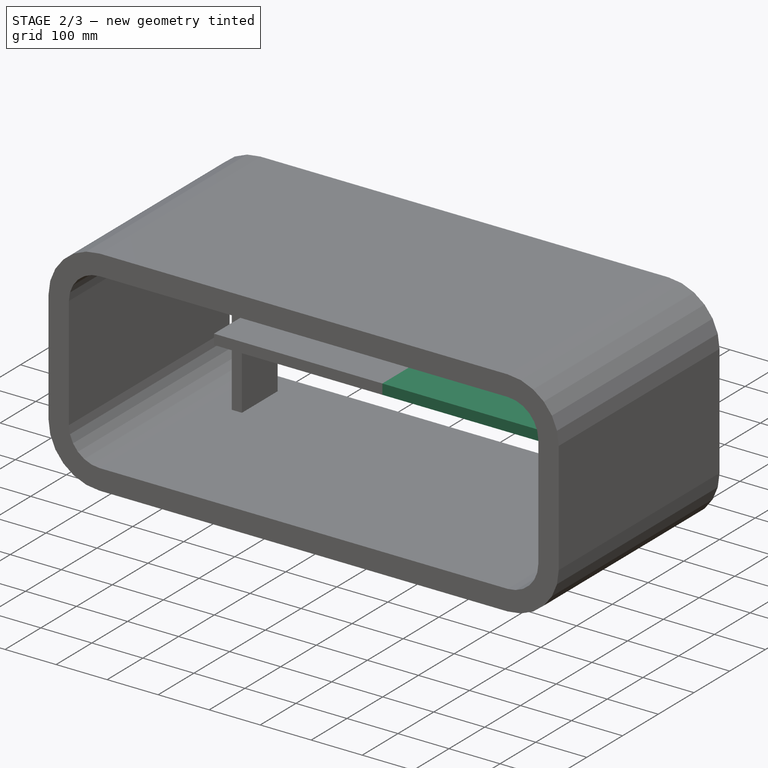
[diagram: stage 2 of 3 — iso view after this stage's code; geometry added in this stage tinted green]
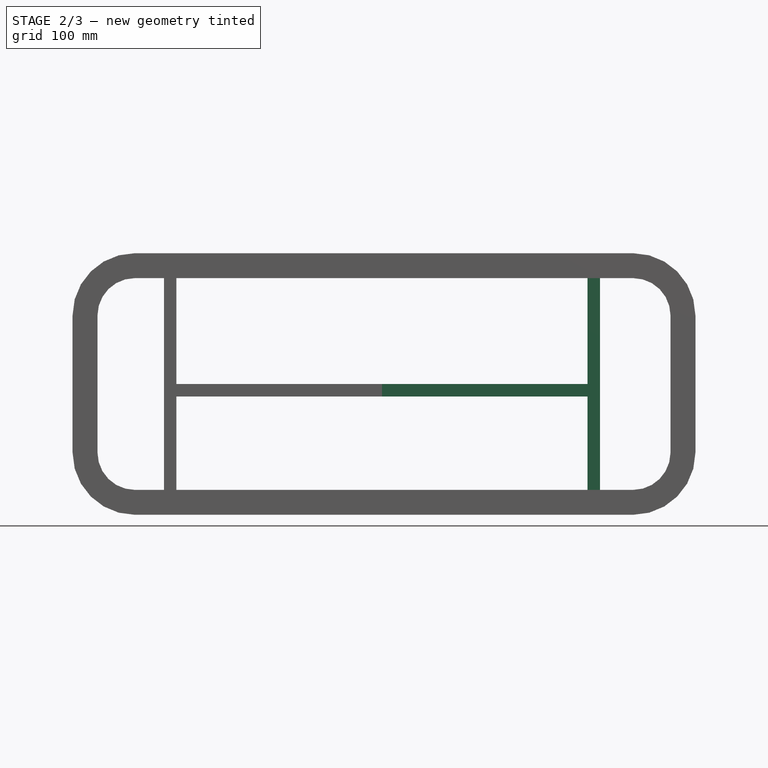
[diagram: stage 2 of 3 — front view after this stage's code; geometry added in this stage tinted green]
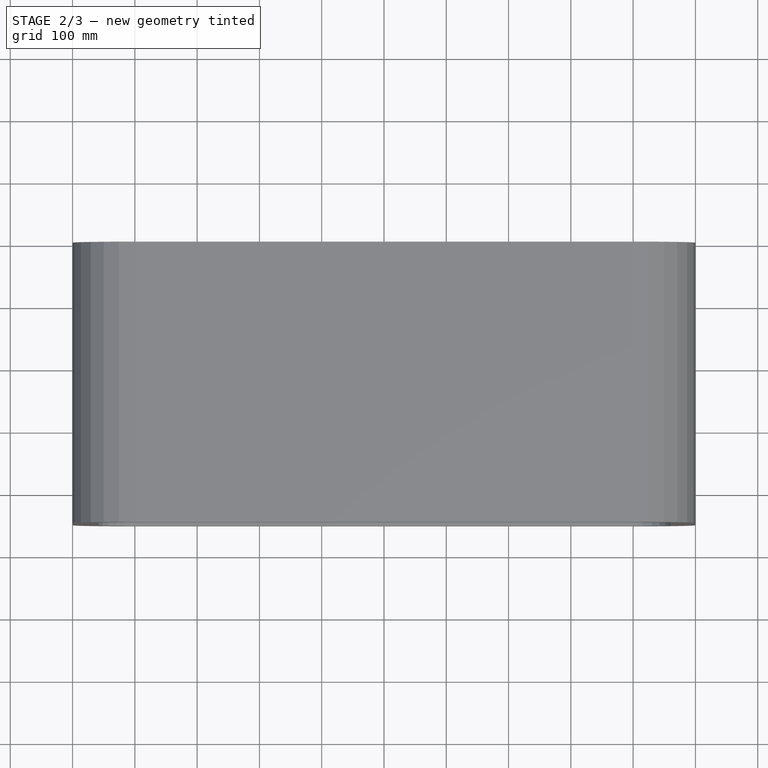
[diagram: stage 2 of 3 — top view after this stage's code; geometry added in this stage tinted green]
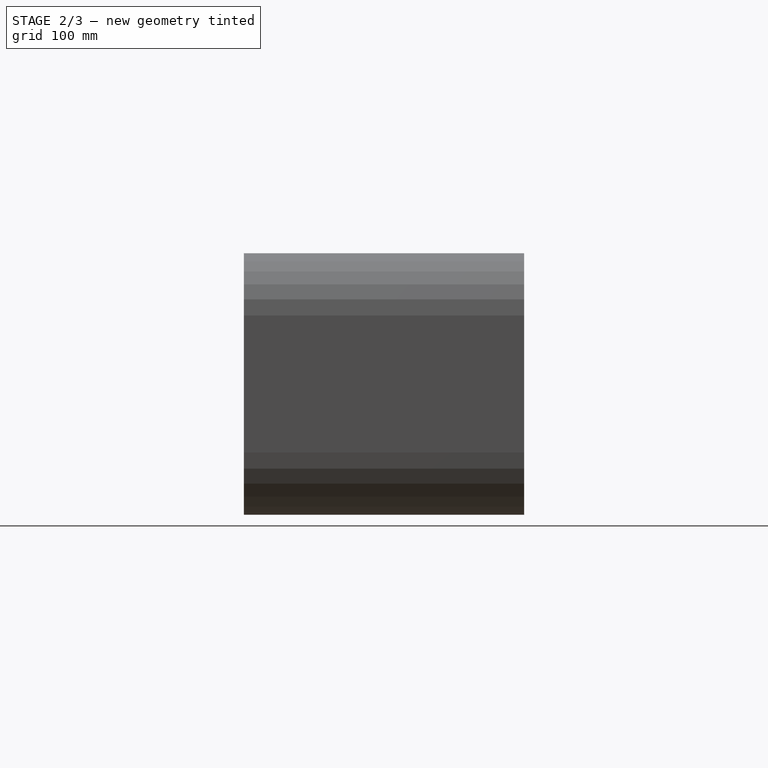
[diagram: stage 2 of 3 — right view after this stage's code; geometry added in this stage tinted green]
FEATURE [PartDesign::Mirrored] Mirrored
  BaseFeature = -> Pad002
  MirrorPlane = -> Pad002 [Face14]
  Originals = -> [Pad001,Pad002]
  Placement = pos=(0,0,40) rot=(0,0,1;0rad)
FEATURE [PartDesign::Fillet] Fillet001
  Base = -> Mirrored [Edge27,Edge20,Edge7,Edge1]
  BaseFeature = -> Mirrored
  Placement = pos=(0,0,40) rot=(0,0,1;0rad)
  Radius = 8
  SupportTransform = false
  UseAllEdges = false
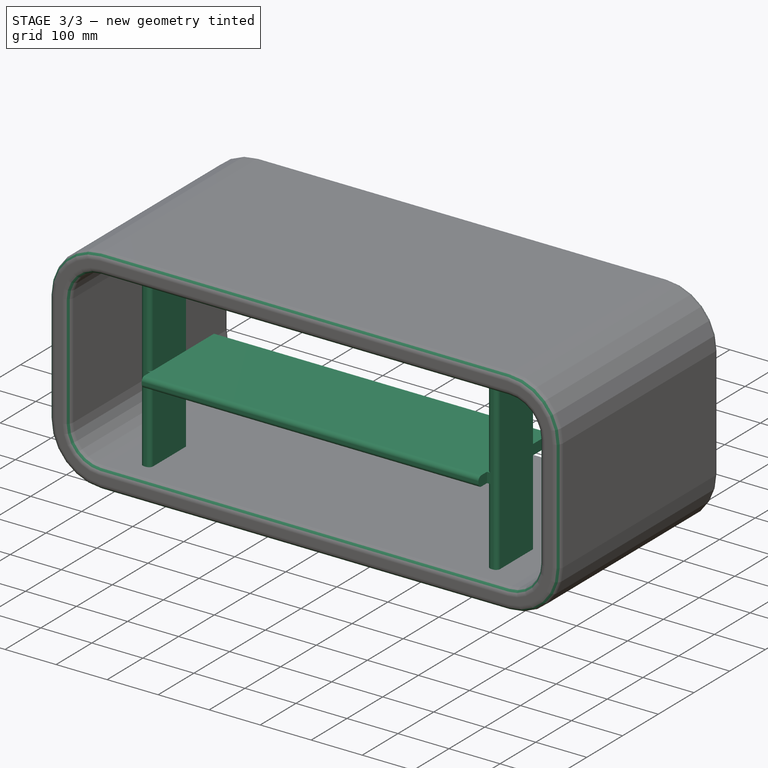
[diagram: stage 3 of 3 — iso view after this stage's code; geometry added in this stage tinted green]
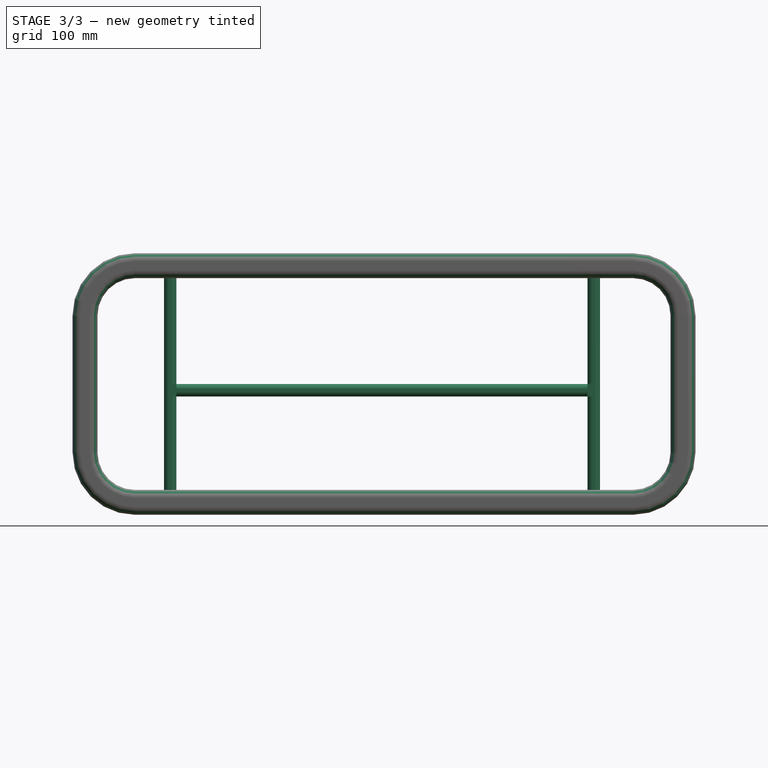
[diagram: stage 3 of 3 — front view after this stage's code; geometry added in this stage tinted green]
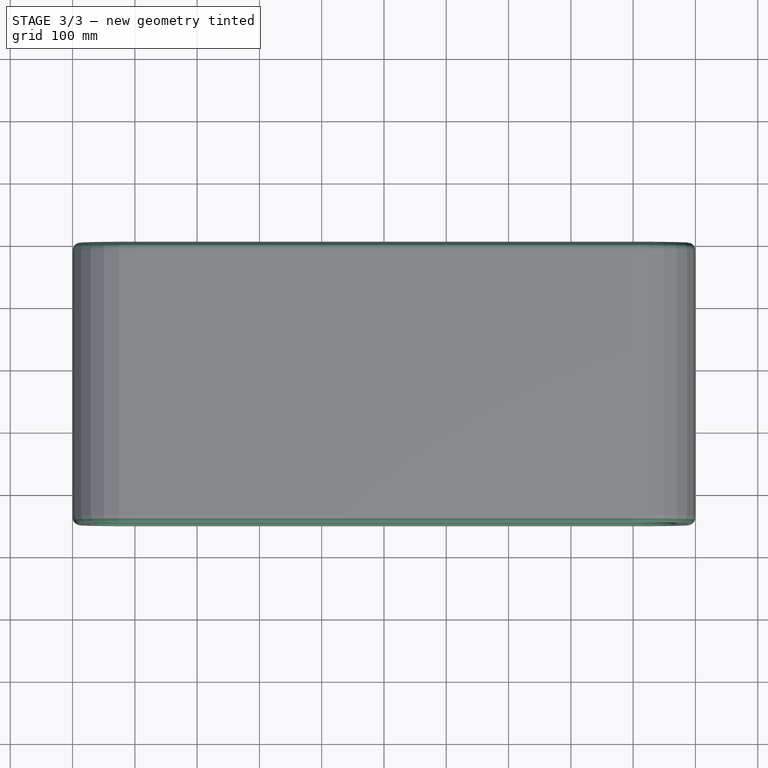
[diagram: stage 3 of 3 — top view after this stage's code; geometry added in this stage tinted green]
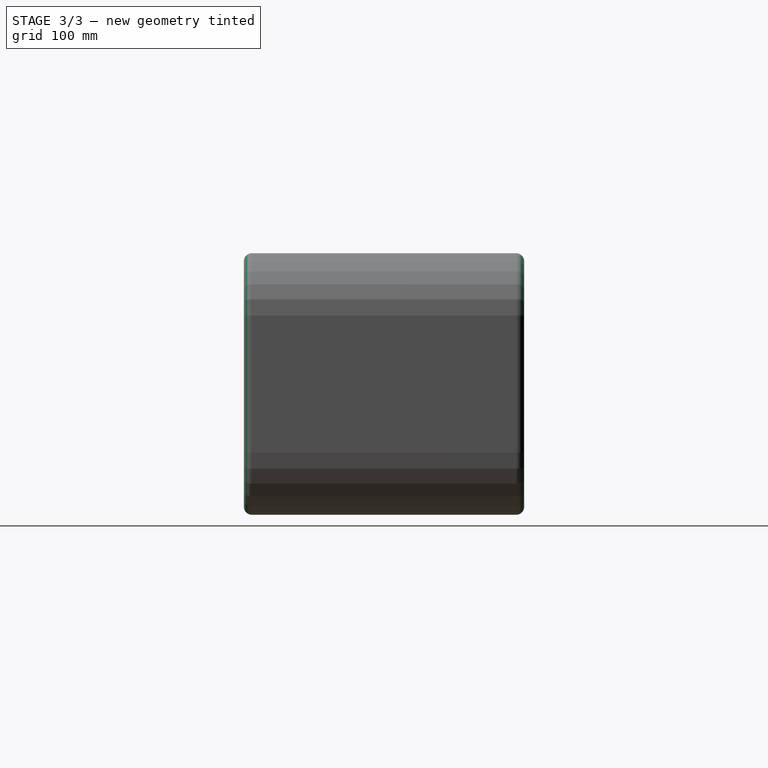
[diagram: stage 3 of 3 — right view after this stage's code; geometry added in this stage tinted green]
FEATURE [Sketcher::SketchObject] Sketch002
  ExternalGeometry = -> [Pad001]
  FullyConstrained = false
  MapMode = 5
  Placement = pos=(166.745,0,40) rot=(0.57735,0.57735,0.57735;2.0944rad)
  Support = -> [Pad001]
  expr: Constraints[10] = Spreadsheet.total_depth
  sketch-geometry (9):
    g0: LineSegment StartX=0 StartY=0 StartZ=0 EndX=0 EndY=340 EndZ=0
    g1: LineSegment StartX=0 StartY=340 StartZ=0 EndX=-450 EndY=340 EndZ=0
    g2: LineSegment StartX=-450 StartY=340 StartZ=0 EndX=-450 EndY=0 EndZ=0
    g3: LineSegment StartX=-450 StartY=0 StartZ=0 EndX=0 EndY=0 EndZ=0
    g4: LineSegment StartX=-22.7004 StartY=170 StartZ=0 EndX=-225 EndY=170 EndZ=0
    g5: LineSegment StartX=-225 StartY=170 StartZ=0 EndX=-225 EndY=150 EndZ=0
    g6: LineSegment StartX=-225 StartY=150 StartZ=0 EndX=-22.7004 EndY=150 EndZ=0
    g7: LineSegment StartX=-22.7004 StartY=150 StartZ=0 EndX=-22.7004 EndY=170 EndZ=0
    g8: LineSegment StartX=-225 StartY=340 StartZ=0 EndX=-225 EndY=0 EndZ=0
  constraints (24):
    c: Coincident(g0,g1)
    c: Coincident(g1,g2)
    c: Coincident(g2,g3)
    c: Coincident(g3,g0)
    c: Vertical(g0)
    c: Vertical(g2)
    c: Horizontal(g1)
    c: Horizontal(g3)
    c: Coincident(g0,g-1)
    c: PointOnObject(g-3,g1)
    c: DistanceX(g3,g3) = 450
    c: Coincident(g4,g5)
    c: Coincident(g5,g6)
    c: Coincident(g6,g7)
    c: Coincident(g7,g4)
    c: Horizontal(g6)
    c: Vertical(g5)
    c: Vertical(g7)
    c: PointOnObject(g8,g1)
    c: PointOnObject(g8,g3)
    c: Symmetric(g1,g0,g8)
    c: DistanceY(g5,g4) = 20
    c: Symmetric(g8,g8,g4)
    c: PointOnObject(g4,g8)
FEATURE [PartDesign::Fillet] Fillet
  Base = -> Pad [Face57,Face58]
  BaseFeature = -> Pad
  Placement = pos=(0,0,0) rot=(1,0,0;1.5708rad)
  Radius = 13
  SupportTransform = false
  UseAllEdges = false
FEATURE [PartDesign::Fillet] Fillet002
  Base = -> Fillet001 [Edge33,Edge16,Edge34,Edge50,Edge61,Edge60]
  BaseFeature = -> Fillet001
  Placement = pos=(0,0,40) rot=(0,0,1;0rad)
  Radius = 8
  SupportTransform = false
  UseAllEdges = false
FEATURE [PartDesign::Body] Body001  label="InnerShelf"
  Group = -> [DatumPlane001,Sketch001,Pad001,Sketch002,Pad002,Mirrored,Fillet001,Fillet002]
  Origin = -> Origin001
  Tip = -> Fillet002
FEATURE [Part::Mirroring] Part__Mirroring  label="InnerShelf (Mirror #1)"
  Base = (166.745,-225,210)
  MirrorPlane = -> Fillet002 [Face16]
  Normal = (0,1,0)
  Source = -> Body001
FEATURE [TechDraw::DrawSVGTemplate] Template
  Height = 215.9
  Orientation = 1
  Template = <path>
  Width = 279.4
FEATURE [TechDraw::DrawProjGroupItem] ProjItem  label="Front"
  CoarseView = false
  Direction = (0,1,0)
  Focus = 100
  HardHidden = false
  IsoCount = 0
  IsoHidden = false
  IsoVisible = false
  LockPosition = true
  Perspective = false
  Rotation = 0
  RotationVector = (-1,0,0)
  Scale = 0.2
  ScaleType = 2
  ScrubCount = 0
  SeamHidden = false
  SeamVisible = false
  SmoothHidden = false
  SmoothVisible = true
  Source = -> [Pad]
  Type = 0
  X = 0
  XDirection = (-1,0,0)
  Y = 0
FEATURE [TechDraw::DrawProjGroupItem] ProjItem001  label="Top"
  CoarseView = false
  Direction = (0,0,1)
  Focus = 100
  HardHidden = false
  IsoCount = 0
  IsoHidden = false
  IsoVisible = false
  LockPosition = false
  Perspective = false
  Rotation = 0
  RotationVector = (1,0,0)
  Scale = 0.2
  ScaleType = 2
  ScrubCount = 0
  SeamHidden = false
  SeamVisible = false
  SmoothHidden = false
  SmoothVisible = true
  Source = -> [Pad]
  Type = 4
  X = 0
  XDirection = (-1,0,0)
  Y = -102
FEATURE [TechDraw::DrawProjGroup] ProjGroup
  Anchor = -> ProjItem
  AutoDistribute = true
  LockPosition = false
  ProjectionType = 0
  Rotation = 0
  Scale = 0.2
  ScaleType = 2
  Source = -> [Pad]
  Views = -> [ProjItem,ProjItem001]
  X = 138.016
  Y = 163.523
  spacingX = 15
  spacingY = 15
FEATURE [TechDraw::DrawViewDimension] Dimension
  AngleOverride = false
  Arbitrary = false
  ArbitraryTolerances = false
  EqualTolerance = true
  ExtensionAngle = 0
  FormatSpec = %.0w
  FormatSpecOverTolerance = %+.0w
  FormatSpecUnderTolerance = %+.0w
  Inverted = false
  LineAngle = 0
  LockPosition = false
  MeasureType = 1
  OverTolerance = 0
  References2D = -> [ProjItem]
  Rotation = 0
  ScaleType = 0
  TheoreticalExact = false
  Type = 1
  UnderTolerance = 0
  X = 0.584733
  Y = 50.4401
FEATURE [TechDraw::DrawViewDimension] Dimension002
  AngleOverride = false
  Arbitrary = false
  ArbitraryTolerances = false
  EqualTolerance = true
  ExtensionAngle = 0
  FormatSpec = %.0w
  FormatSpecOverTolerance = %+.0w
  FormatSpecUnderTolerance = %+.0w
  Inverted = false
  LineAngle = 0
  LockPosition = false
  MeasureType = 1
  OverTolerance = 0
  References2D = -> [ProjItem001]
  Rotation = 0
  ScaleType = 0
  TheoreticalExact = false
  Type = 2
  UnderTolerance = 0
  X = -109.171
  Y = 6.23011
FEATURE [TechDraw::DrawViewDimension] Dimension003
  AngleOverride = false
  Arbitrary = false
  ArbitraryTolerances = false
  EqualTolerance = true
  ExtensionAngle = 0
  FormatSpec = ⌀%.0w
  FormatSpecOverTolerance = %+.0w
  FormatSpecUnderTolerance = %+.0w
  Inverted = false
  LineAngle = 0
  LockPosition = false
  MeasureType = 1
  OverTolerance = 0
  References2D = -> [ProjItem]
  Rotation = 0
  ScaleType = 0
  TheoreticalExact = false
  Type = 5
  UnderTolerance = 0
  X = -82.1653
  Y = 25.7837
FEATURE [TechDraw::DrawViewDimension] Dimension004
  AngleOverride = false
  Arbitrary = false
  ArbitraryTolerances = false
  EqualTolerance = true
  ExtensionAngle = 0
  FormatSpec = %.0w
  FormatSpecOverTolerance = %+.0w
  FormatSpecUnderTolerance = %+.0w
  Inverted = false
  LineAngle = 0
  LockPosition = false
  MeasureType = 1
  OverTolerance = 0
  References2D = -> [ProjItem001]
  Rotation = 0
  ScaleType = 0
  TheoreticalExact = false
  Type = 1
  UnderTolerance = 0
  X = -0.157734
  Y = 51.9908
FEATURE [TechDraw::DrawViewDimension] Dimension005
  AngleOverride = false
  Arbitrary = false
  ArbitraryTolerances = false
  EqualTolerance = true
  ExtensionAngle = 0
  FormatSpec = %.1w
  FormatSpecOverTolerance = %+.0w
  FormatSpecUnderTolerance = %+.0w
  Inverted = false
  LineAngle = 0
  LockPosition = false
  MeasureType = 1
  OverTolerance = 0
  References2D = -> [ProjItem]
  Rotation = 0
  ScaleType = 0
  TheoreticalExact = false
  Type = 0
  UnderTolerance = 0
  X = 94.6649
  Y = 43.0161
FEATURE [TechDraw::DrawViewDimension] Dimension006
  AngleOverride = false
  Arbitrary = false
  ArbitraryTolerances = false
  EqualTolerance = true
  ExtensionAngle = 0
  FormatSpec = %.1w
  FormatSpecOverTolerance = %+.0w
  FormatSpecUnderTolerance = %+.0w
  Inverted = false
  LineAngle = 0
  LockPosition = false
  MeasureType = 1
  OverTolerance = 0
  References2D = -> [ProjItem]
  Rotation = 0
  ScaleType = 0
  TheoreticalExact = false
  Type = 0
  UnderTolerance = 0
  X = 88.8171
  Y = 34.837
FEATURE [TechDraw::DrawViewDimension] Dimension007
  AngleOverride = false
  Arbitrary = false
  ArbitraryTolerances = false
  EqualTolerance = true
  ExtensionAngle = 0
  FormatSpec = %.1w
  FormatSpecOverTolerance = %+.0w
  FormatSpecUnderTolerance = %+.0w
  Inverted = false
  LineAngle = 0
  LockPosition = false
  MeasureType = 1
  OverTolerance = 0
  References2D = -> [ProjItem]
  Rotation = 0
  ScaleType = 0
  TheoreticalExact = false
  Type = 7
  UnderTolerance = 0
  X = 99.293
  Y = -37.2194
FEATURE [TechDraw::DrawViewAnnotation] Annotation
  Font = osifont
  LineSpace = 100
  LockPosition = false
  MaxWidth = -1
  Rotation = 0
  ScaleType = 0
  Text = Each corner is made of 6 sections
  TextSize = 2
  TextStyle = 0
  X = 202.512
  Y = 143.795
FEATURE [TechDraw::DrawViewDimension] Dimension008
  AngleOverride = false
  Arbitrary = false
  ArbitraryTolerances = false
  EqualTolerance = true
  ExtensionAngle = 0
  FormatSpec = %.0w
  FormatSpecOverTolerance = %+.0w
  FormatSpecUnderTolerance = %+.0w
  Inverted = false
  LineAngle = 0
  LockPosition = false
  MeasureType = 1
  OverTolerance = 0
  References2D = -> [ProjItem]
  Rotation = 0
  ScaleType = 0
  TheoreticalExact = false
  Type = 2
  UnderTolerance = 0
  X = -77.3237
  Y = -36.8862
FEATURE [TechDraw::DrawPage] Page
  KeepUpdated = true
  NextBalloonIndex = 1
  ProjectionType = 0
  Template = -> Template
  Views = -> [ProjGroup,Dimension,Dimension002,Dimension003,Dimension004,Dimension005,Dimension006,Dimension007,Annotation,Dimension008]
note: 1 file-system path scrubbed to <path> (originals preserved in the JSON sidecar)
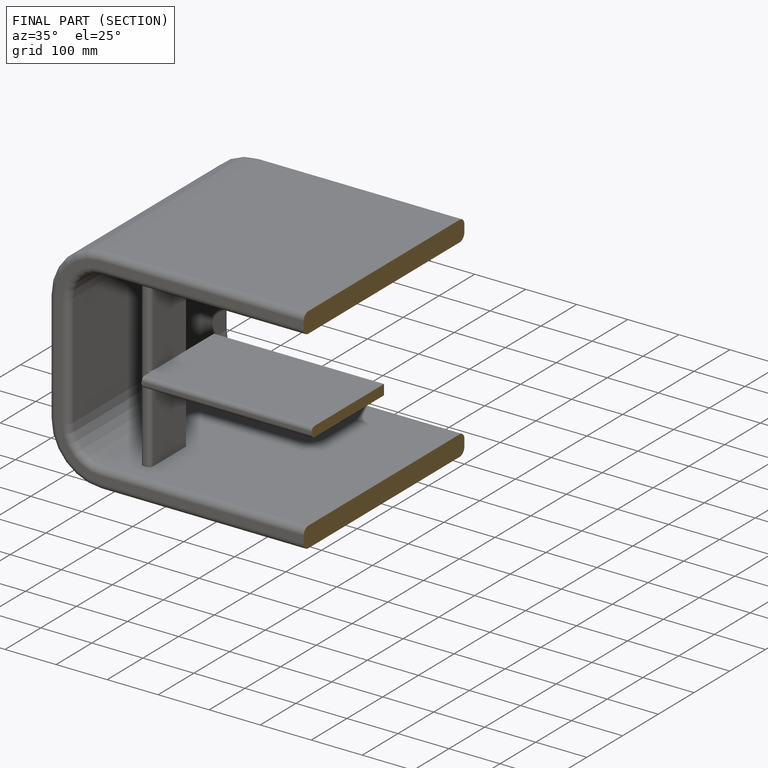
[diagram: finished part — half-section view (interior)]
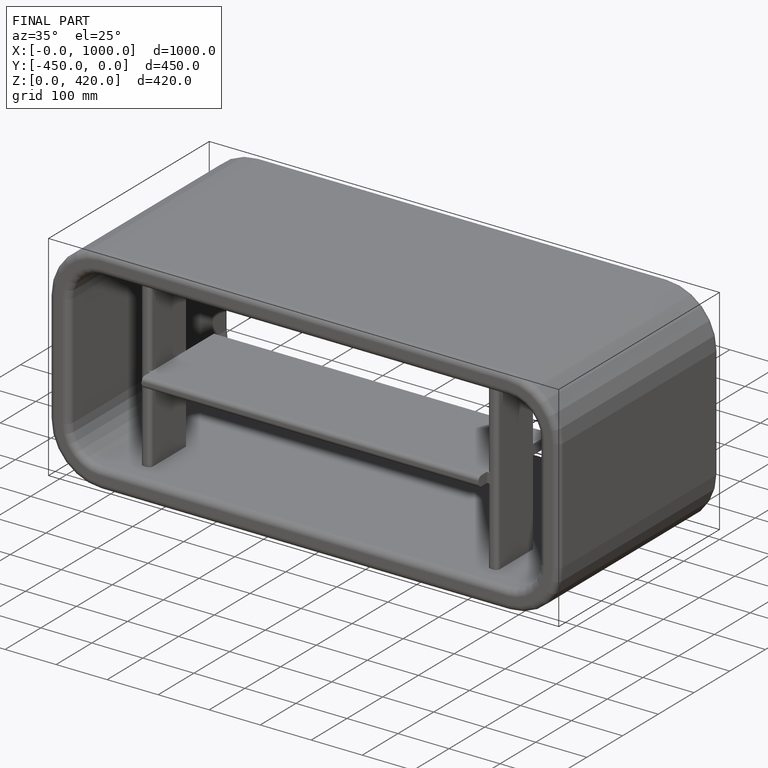
[diagram: finished part — iso view with bounding-box wireframe]
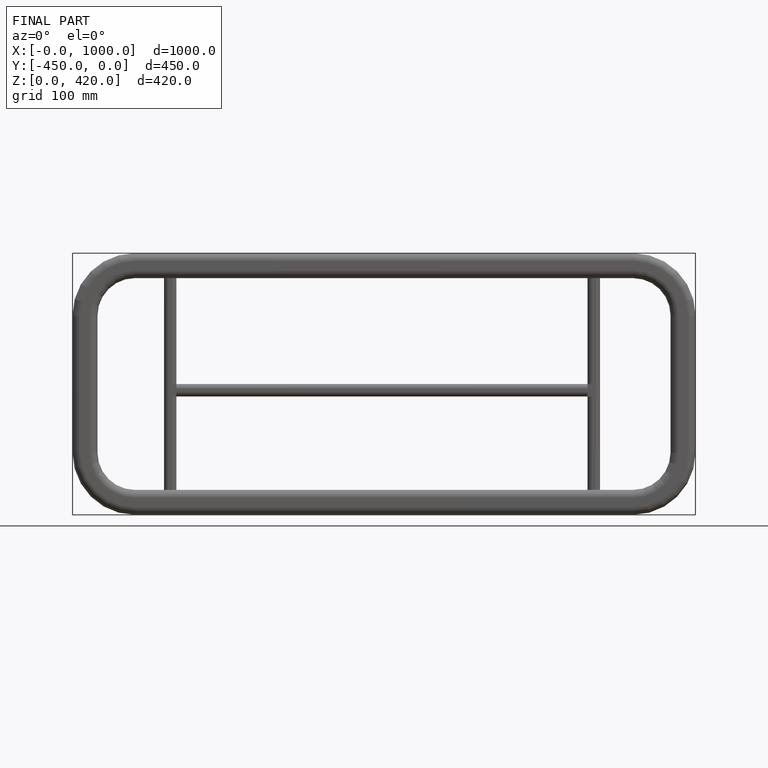
[diagram: finished part — front view with bounding-box wireframe]
